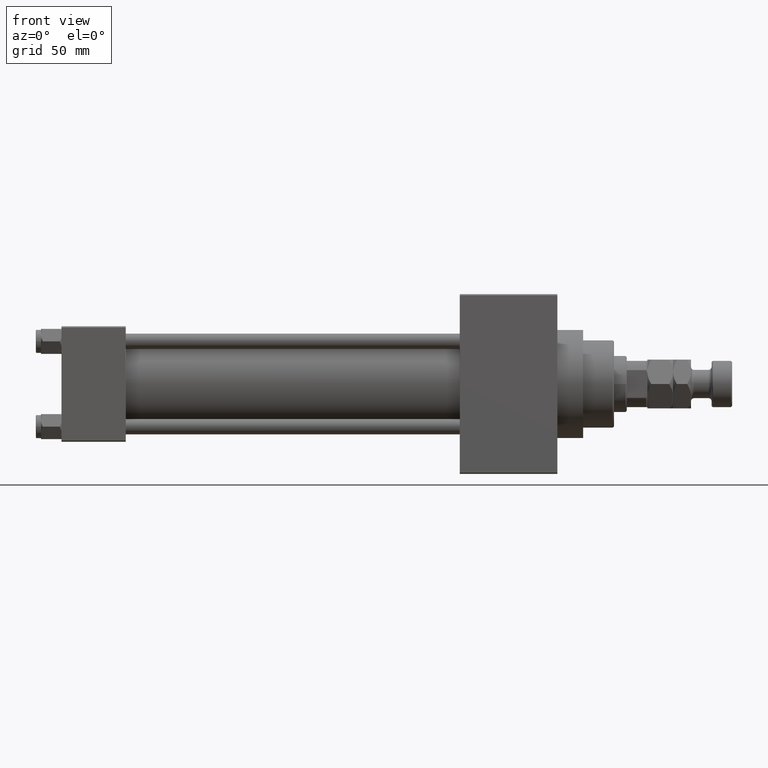
[diagram: clean part render]
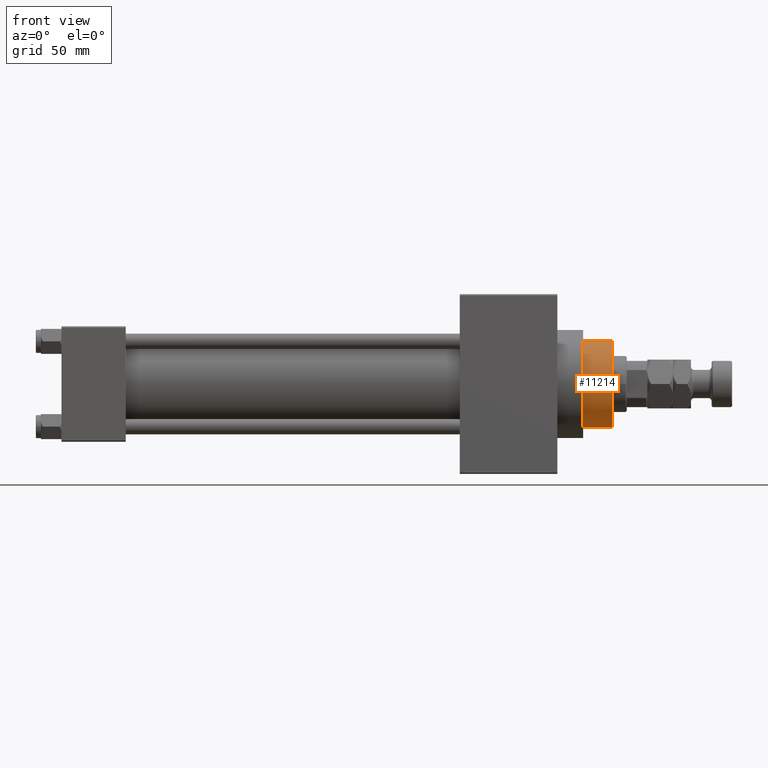
[diagram: same view with one face highlighted and labeled with its STEP entity id]
A machine part, front view. The second image highlights one B-rep face of the part: STEP entity #11214.
In plain terms, the highlighted cylindrical surface (partial cylindrical patch) has radius 17 mm, axis along (-1, 0, 0).
Its self-contained STEP definition (entity closure, byte-faithful):
#1747 = VERTEX_POINT ( 'NONE', #22716 ) ;
#2478 = CARTESIAN_POINT ( 'NONE',  ( 17.00000000000000000, 2.081899558550500280E-15, 54.76000000000001222 ) ) ;
#3522 = CIRCLE ( 'NONE', #5162, 17.00000000000000000 ) ;
#4563 = CARTESIAN_POINT ( 'NONE',  ( 0.000000000000000000, 0.000000000000000000, 55.26000000000000512 ) ) ;
#5162 = AXIS2_PLACEMENT_3D ( 'NONE', #24300, #44591, #47932 ) ;
#5784 = VECTOR ( 'NONE', #49112, 1000.000000000000000 ) ;
#6475 = EDGE_LOOP ( 'NONE', ( #26961, #22203, #16349, #15768 ) ) ;
#6997 = VERTEX_POINT ( 'NONE', #2478 ) ;
#8403 = CARTESIAN_POINT ( 'NONE',  ( 17.00000000000000000, 2.081899558550500280E-15, 43.25999999999999801 ) ) ;
#8919 = DIRECTION ( 'NONE',  ( -1.000000000000000000, 0.000000000000000000, 0.000000000000000000 ) ) ;
#9055 = CARTESIAN_POINT ( 'NONE',  ( 0.000000000000000000, 0.000000000000000000, 54.76000000000001222 ) ) ;
#10638 = VERTEX_POINT ( 'NONE', #28006 ) ;
#11214 = ADVANCED_FACE ( 'NONE', ( #44113 ), #28193, .T. ) ;
#11531 = AXIS2_PLACEMENT_3D ( 'NONE', #9055, #20860, #40647 ) ;
#12935 = CARTESIAN_POINT ( 'NONE',  ( -17.00000000000000000, 0.000000000000000000, 55.26000000000000512 ) ) ;
#15768 = ORIENTED_EDGE ( 'NONE', *, *, #42249, .F. ) ;
#16349 = ORIENTED_EDGE ( 'NONE', *, *, #26944, .T. ) ;
#20146 = DIRECTION ( 'NONE',  ( -0.000000000000000000, -0.000000000000000000, -1.000000000000000000 ) ) ;
#20860 = DIRECTION ( 'NONE',  ( 0.000000000000000000, 0.000000000000000000, -1.000000000000000000 ) ) ;
#22203 = ORIENTED_EDGE ( 'NONE', *, *, #49454, .T. ) ;
#22716 = CARTESIAN_POINT ( 'NONE',  ( -17.00000000000000000, 0.000000000000000000, 54.76000000000001222 ) ) ;
#24300 = CARTESIAN_POINT ( 'NONE',  ( 0.000000000000000000, 0.000000000000000000, 43.25999999999999801 ) ) ;
#26944 = EDGE_CURVE ( 'NONE', #47861, #10638, #3522, .T. ) ;
#26961 = ORIENTED_EDGE ( 'NONE', *, *, #50130, .T. ) ;
#28006 = CARTESIAN_POINT ( 'NONE',  ( -17.00000000000000000, 0.000000000000000000, 43.25999999999999801 ) ) ;
#28193 = CYLINDRICAL_SURFACE ( 'NONE', #35169, 17.00000000000000000 ) ;
#29333 = LINE ( 'NONE', #33462, #5784 ) ;
#31811 = DIRECTION ( 'NONE',  ( -0.000000000000000000, -0.000000000000000000, -1.000000000000000000 ) ) ;
#33462 = CARTESIAN_POINT ( 'NONE',  ( 17.00000000000000000, 2.081899558550500280E-15, 55.26000000000000512 ) ) ;
#33715 = CIRCLE ( 'NONE', #11531, 17.00000000000000000 ) ;
#35169 = AXIS2_PLACEMENT_3D ( 'NONE', #4563, #31811, #8919 ) ;
#40647 = DIRECTION ( 'NONE',  ( 1.000000000000000000, 0.000000000000000000, 0.000000000000000000 ) ) ;
#42249 = EDGE_CURVE ( 'NONE', #1747, #10638, #43533, .T. ) ;
#42525 = VECTOR ( 'NONE', #20146, 1000.000000000000000 ) ;
#43533 = LINE ( 'NONE', #12935, #42525 ) ;
#44113 = FACE_OUTER_BOUND ( 'NONE', #6475, .T. ) ;
#44591 = DIRECTION ( 'NONE',  ( 0.000000000000000000, 0.000000000000000000, 1.000000000000000000 ) ) ;
#47861 = VERTEX_POINT ( 'NONE', #8403 ) ;
#47932 = DIRECTION ( 'NONE',  ( 1.000000000000000000, 0.000000000000000000, 0.000000000000000000 ) ) ;
#49112 = DIRECTION ( 'NONE',  ( -0.000000000000000000, -0.000000000000000000, -1.000000000000000000 ) ) ;
#49454 = EDGE_CURVE ( 'NONE', #6997, #47861, #29333, .T. ) ;
#50130 = EDGE_CURVE ( 'NONE', #1747, #6997, #33715, .T. ) ;